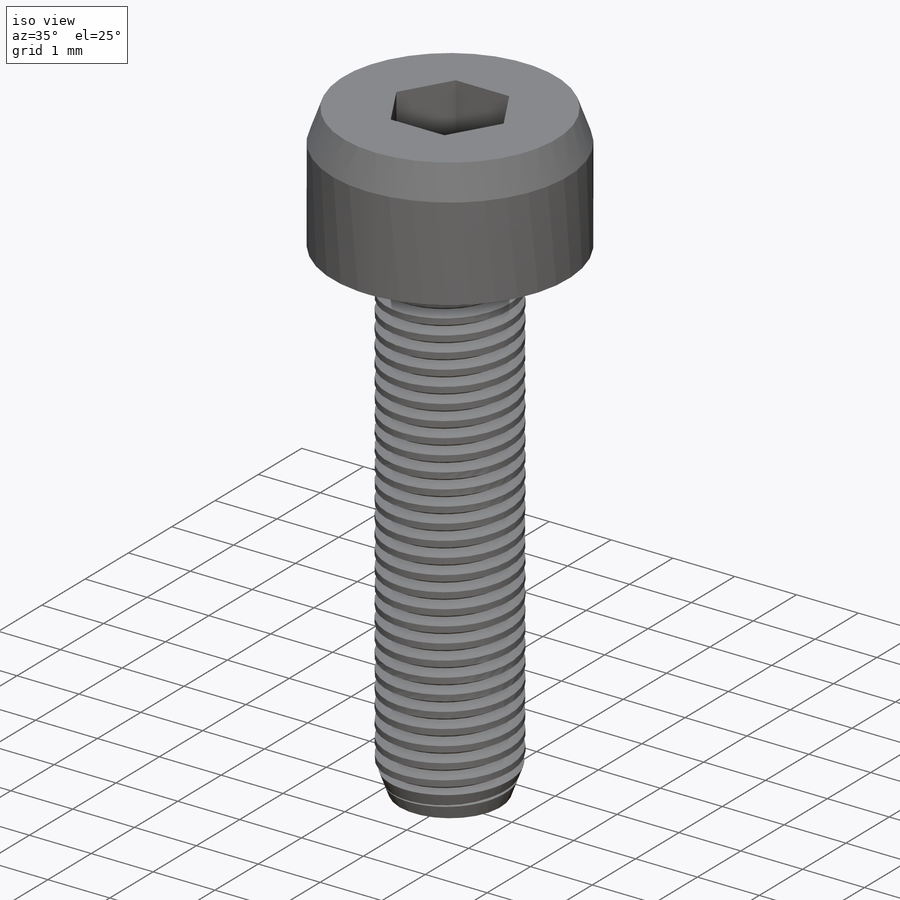
[diagram: iso view]
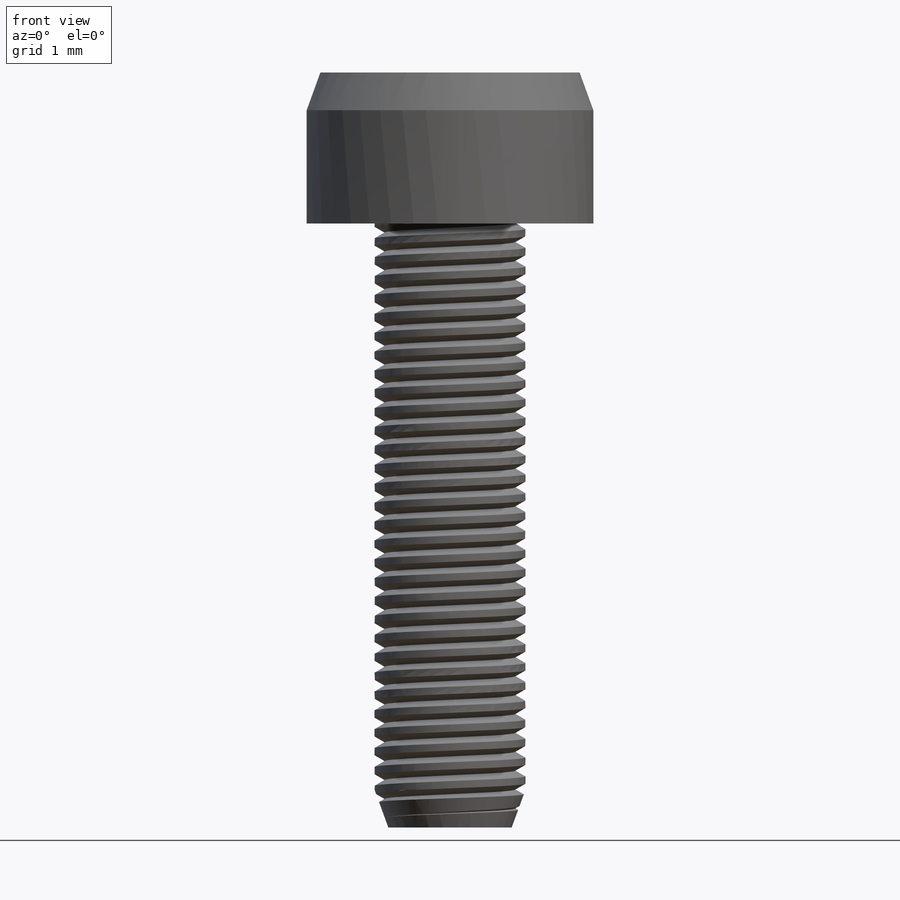
[diagram: front view]
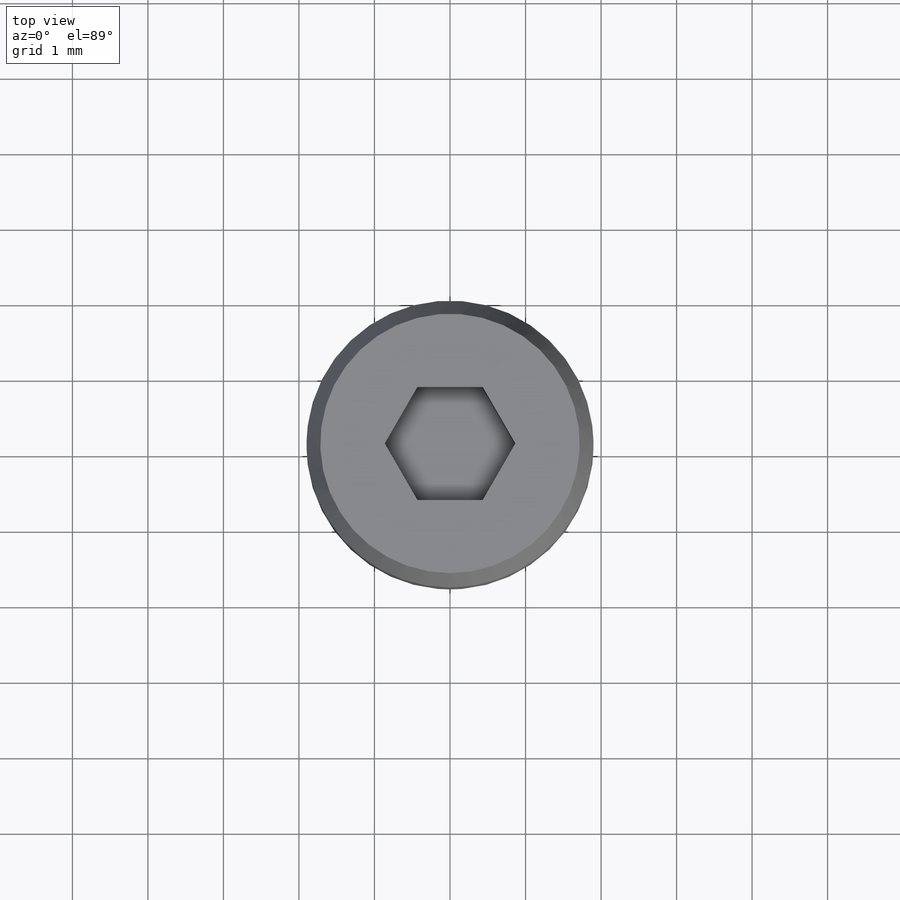
[diagram: top view]
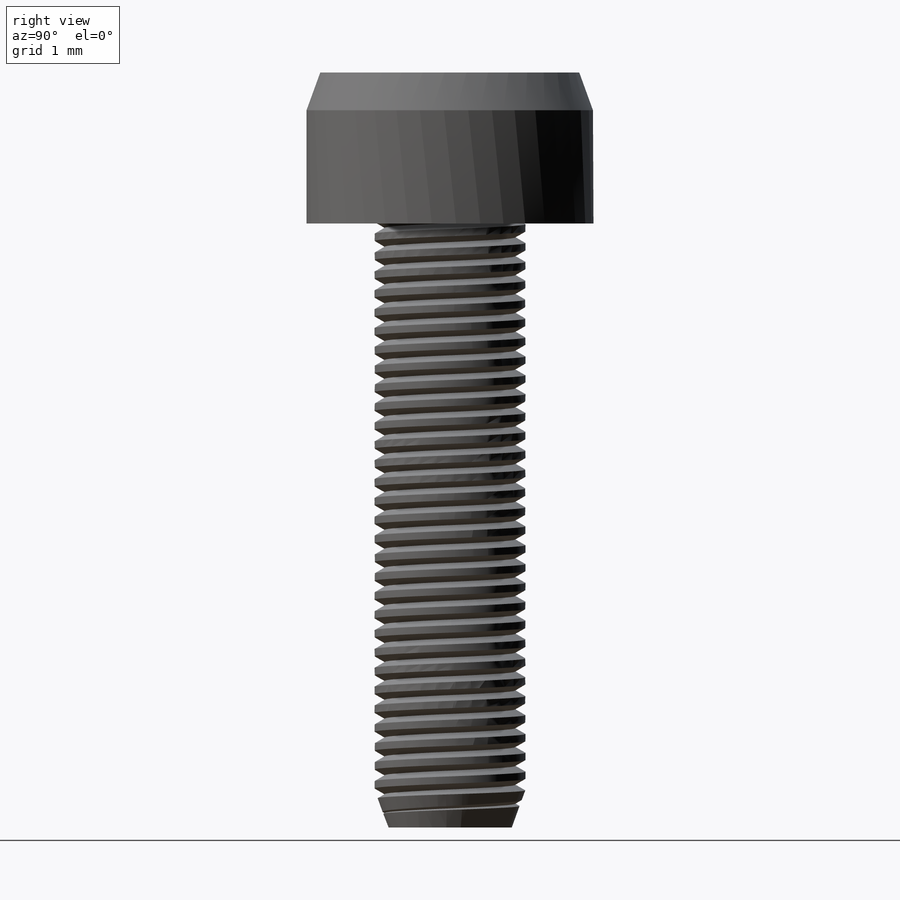
[diagram: right view]
SOLIDWORKS PART (.sldprt)
format: sldprt  version: not decoded by parser v0  size: 739,328 bytes
history: native  units: mm
features: sketch x7, extrude x4, material x1, cut_extrude x1, helix x1, sweep x1 (+12 scaffold rows collapsed)
feature tree (27):
  scaffold x12  (default folders/planes/origin — collapsed)
  material  "Material <not specified>"
  sketch  "Sketch3"  dims[D1=3.8mm]
  extrude  "Boss-Extrude3"  Depth=1.5mm
  sketch  "Sketch4"  dims[D1=3.8mm]
  extrude  "Boss-Extrude5"  Depth=0.5mm
  sketch  "Sketch6"  dims[D1=1.5mm]
  cut_extrude  "Cut-Extrude1"  Depth=1mm
  sketch  "Sketch7"  dims[D1=2.0mm]
  extrude  "Boss-Extrude8"  Depth=7.5mm
  sketch  "Sketch11"  dims[D1=2.0mm]
  extrude  "Boss-Extrude9"  Depth=0.5mm
  sketch  "Sketch12"  dims[D1=2.0mm]
  helix  "Helix/Spiral2"  Pitch=8mm
  sketch  "Sketch13"  dims[c1.D1=0.22mm c1.D2=~0.866719mm c1.D3=~0.993736mm c1.D4=~1.057245mm c2.D2=~0.866719mm]
  sweep  "Cut-Sweep2"
decode coverage: 13 of 14 modeling features carry decoded parameters
note: ~ marks probable driven/reference dimensions
note: suppression state not decoded; provenance and decode notes live in map.json
